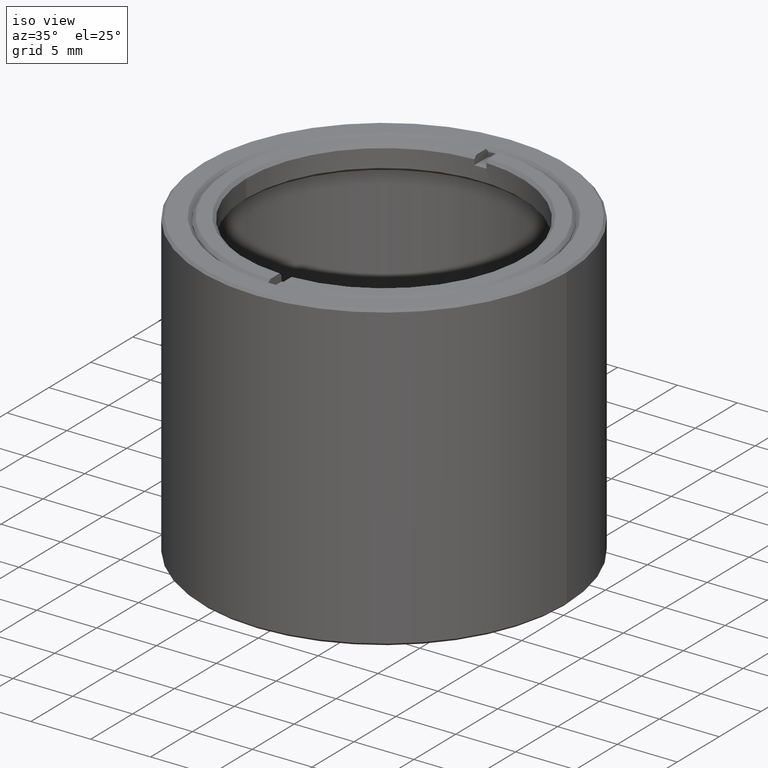
[diagram: clean part render]
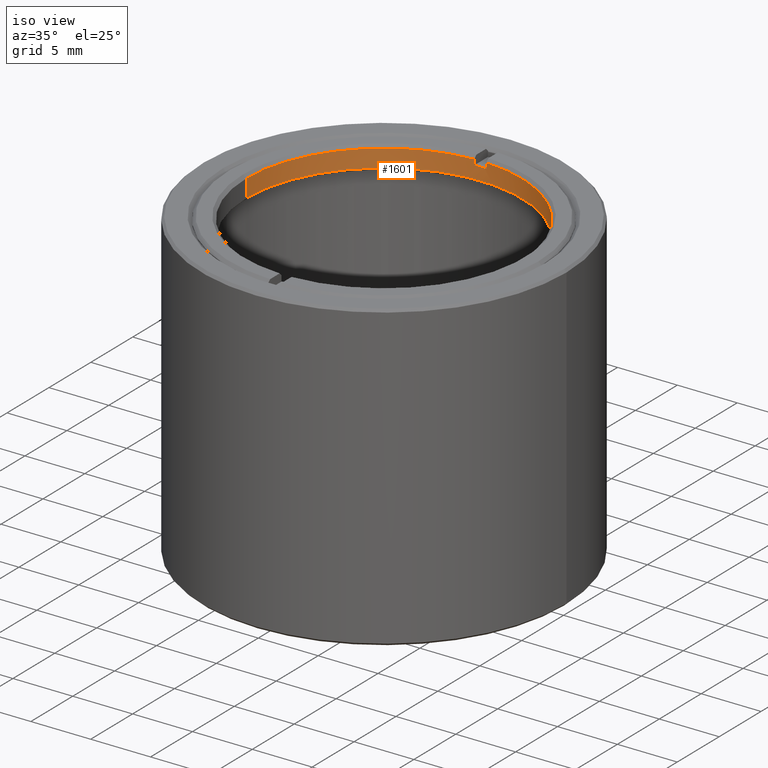
[diagram: same view with one face highlighted and labeled with its STEP entity id]
A machine part, iso view. The second image highlights one B-rep face of the part: STEP entity #1601.
In plain terms, the highlighted cylindrical surface (partial cylindrical patch) has radius 11.5045 mm, axis along (0, 0, -1).
Its self-contained STEP definition (entity closure, byte-faithful):
#3 = AXIS2_PLACEMENT_3D ( 'NONE', #1719, #1536, #2480 ) ;
#34 = AXIS2_PLACEMENT_3D ( 'NONE', #2056, #955, #1149 ) ;
#52 = EDGE_CURVE ( 'NONE', #2064, #2510, #151, .T. ) ;
#90 = CARTESIAN_POINT ( 'NONE',  ( -0.5000000000000013323, 11.49362955075548243, -6.350000000000005862 ) ) ;
#95 = CARTESIAN_POINT ( 'NONE',  ( 11.50450000000000017, 1.424202995068415542E-15, -8.099999999999994316 ) ) ;
#100 = DIRECTION ( 'NONE',  ( -1.000000000000000000, -1.224646799147353207E-16, -1.507865162307626328E-16 ) ) ;
#109 = CARTESIAN_POINT ( 'NONE',  ( 8.082668874372534964E-16, 3.614585319625988684E-31, -6.599999999999997868 ) ) ;
#151 = CIRCLE ( 'NONE', #316, 11.50449999999998951 ) ;
#167 = CARTESIAN_POINT ( 'NONE',  ( -11.50449999999998951, -2.817789820158137436E-15, -6.350000000000007638 ) ) ;
#176 = VERTEX_POINT ( 'NONE', #1903 ) ;
#212 = EDGE_CURVE ( 'NONE', #699, #176, #810, .T. ) ;
#225 = FACE_OUTER_BOUND ( 'NONE', #2331, .T. ) ;
#285 = EDGE_CURVE ( 'NONE', #176, #577, #1355, .T. ) ;
#316 = AXIS2_PLACEMENT_3D ( 'NONE', #109, #2047, #681 ) ;
#412 = LINE ( 'NONE', #2237, #570 ) ;
#435 = CARTESIAN_POINT ( 'NONE',  ( -11.50449999999999662, -2.848405990136823590E-15, -8.099999999999997868 ) ) ;
#478 = VECTOR ( 'NONE', #2409, 1000.000000000000000 ) ;
#563 = CARTESIAN_POINT ( 'NONE',  ( 7.776507174585717801E-16, 1.131830509717493429E-30, -6.350000000000005862 ) ) ;
#570 = VECTOR ( 'NONE', #1694, 1000.000000000000000 ) ;
#577 = VERTEX_POINT ( 'NONE', #435 ) ;
#643 = VERTEX_POINT ( 'NONE', #95 ) ;
#646 = VECTOR ( 'NONE', #1368, 1000.000000000000000 ) ;
#681 = DIRECTION ( 'NONE',  ( -1.000000000000000000, -1.224646799147353207E-16, -1.507865162307626328E-16 ) ) ;
#688 = EDGE_CURVE ( 'NONE', #2064, #643, #2475, .T. ) ;
#699 = VERTEX_POINT ( 'NONE', #2218 ) ;
#710 = VERTEX_POINT ( 'NONE', #1673 ) ;
#732 = DIRECTION ( 'NONE',  ( 1.224646799147355179E-16, 7.395570986447007571E-32, -1.000000000000000000 ) ) ;
#810 = CIRCLE ( 'NONE', #3, 11.50449999999998951 ) ;
#832 = EDGE_CURVE ( 'NONE', #710, #1624, #980, .T. ) ;
#872 = EDGE_CURVE ( 'NONE', #699, #1624, #2034, .T. ) ;
#901 = EDGE_CURVE ( 'NONE', #577, #643, #1563, .T. ) ;
#955 = DIRECTION ( 'NONE',  ( 1.224646799147355179E-16, 7.395570986447007571E-32, -1.000000000000000000 ) ) ;
#980 = CIRCLE ( 'NONE', #2502, 11.50449999999998951 ) ;
#1058 = ORIENTED_EDGE ( 'NONE', *, *, #688, .F. ) ;
#1149 = DIRECTION ( 'NONE',  ( -1.000000000000000000, -1.224646799147353207E-16, -1.507865162307626328E-16 ) ) ;
#1240 = CYLINDRICAL_SURFACE ( 'NONE', #1402, 11.50449999999998951 ) ;
#1242 = ORIENTED_EDGE ( 'NONE', *, *, #872, .F. ) ;
#1246 = CARTESIAN_POINT ( 'NONE',  ( -0.5000000000000012212, 11.49362955075548243, -7.050000000000001599 ) ) ;
#1284 = CARTESIAN_POINT ( 'NONE',  ( 8.633759933988858710E-16, 4.577550291819607924E-31, -7.049999999999998046 ) ) ;
#1300 = ORIENTED_EDGE ( 'NONE', *, *, #832, .T. ) ;
#1355 = LINE ( 'NONE', #167, #646 ) ;
#1368 = DIRECTION ( 'NONE',  ( 1.224646799147355179E-16, 7.395570986447007571E-32, -1.000000000000000000 ) ) ;
#1402 = AXIS2_PLACEMENT_3D ( 'NONE', #563, #2014, #2401 ) ;
#1477 = CARTESIAN_POINT ( 'NONE',  ( 11.50449999999998951, 1.408894910079072465E-15, -6.350000000000004086 ) ) ;
#1478 = DIRECTION ( 'NONE',  ( -1.224646799147355179E-16, -7.395570986447007571E-32, 1.000000000000000000 ) ) ;
#1536 = DIRECTION ( 'NONE',  ( -1.224646799147355179E-16, -7.395570986447007571E-32, 1.000000000000000000 ) ) ;
#1563 = CIRCLE ( 'NONE', #34, 11.50449999999998951 ) ;
#1565 = ORIENTED_EDGE ( 'NONE', *, *, #1771, .F. ) ;
#1569 = ORIENTED_EDGE ( 'NONE', *, *, #52, .T. ) ;
#1601 = ADVANCED_FACE ( 'NONE', ( #225 ), #1240, .F. ) ;
#1624 = VERTEX_POINT ( 'NONE', #1246 ) ;
#1673 = CARTESIAN_POINT ( 'NONE',  ( 0.4999999999999970579, 11.49362955075548243, -7.049999999999998046 ) ) ;
#1694 = DIRECTION ( 'NONE',  ( -1.224646799147355179E-16, -7.395570986447007571E-32, 1.000000000000000000 ) ) ;
#1703 = CARTESIAN_POINT ( 'NONE',  ( 11.50449999999999839, 1.408894910079073451E-15, -6.599999999999996092 ) ) ;
#1719 = CARTESIAN_POINT ( 'NONE',  ( 8.082668874372534964E-16, 3.614585319625988684E-31, -6.599999999999997868 ) ) ;
#1771 = EDGE_CURVE ( 'NONE', #710, #2510, #412, .T. ) ;
#1824 = VECTOR ( 'NONE', #732, 1000.000000000000000 ) ;
#1826 = ORIENTED_EDGE ( 'NONE', *, *, #212, .T. ) ;
#1903 = CARTESIAN_POINT ( 'NONE',  ( -11.50449999999999839, -1.424202995068411006E-15, -6.599999999999999645 ) ) ;
#2014 = DIRECTION ( 'NONE',  ( 1.224646799147355179E-16, 7.395570986447007571E-32, -1.000000000000000000 ) ) ;
#2034 = LINE ( 'NONE', #90, #1824 ) ;
#2047 = DIRECTION ( 'NONE',  ( -1.224646799147355179E-16, -7.395570986447007571E-32, 1.000000000000000000 ) ) ;
#2056 = CARTESIAN_POINT ( 'NONE',  ( 9.919639073093571061E-16, 1.035534012498131636E-30, -8.099999999999996092 ) ) ;
#2064 = VERTEX_POINT ( 'NONE', #1703 ) ;
#2180 = ORIENTED_EDGE ( 'NONE', *, *, #285, .T. ) ;
#2218 = CARTESIAN_POINT ( 'NONE',  ( -0.5000000000000013323, 11.49362955075548243, -6.600000000000001421 ) ) ;
#2237 = CARTESIAN_POINT ( 'NONE',  ( 0.4999999999999970024, 11.49362955075548243, -6.350000000000004974 ) ) ;
#2331 = EDGE_LOOP ( 'NONE', ( #1826, #2180, #2477, #1058, #1569, #1565, #1300, #1242 ) ) ;
#2401 = DIRECTION ( 'NONE',  ( 1.000000000000000000, 1.224646799147353207E-16, 1.507865162307626328E-16 ) ) ;
#2409 = DIRECTION ( 'NONE',  ( 1.224646799147355179E-16, 7.395570986447007571E-32, -1.000000000000000000 ) ) ;
#2475 = LINE ( 'NONE', #1477, #478 ) ;
#2477 = ORIENTED_EDGE ( 'NONE', *, *, #901, .T. ) ;
#2480 = DIRECTION ( 'NONE',  ( -1.000000000000000000, -1.224646799147353207E-16, -1.507865162307626328E-16 ) ) ;
#2488 = CARTESIAN_POINT ( 'NONE',  ( 0.4999999999999970024, 11.49362955075548243, -6.599999999999996980 ) ) ;
#2502 = AXIS2_PLACEMENT_3D ( 'NONE', #1284, #1478, #100 ) ;
#2510 = VERTEX_POINT ( 'NONE', #2488 ) ;